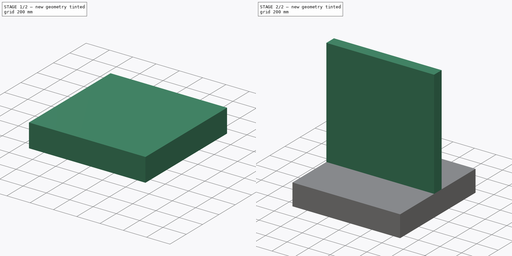
[diagram: build sequence overview — one tinted view per stage of 2, left to right]
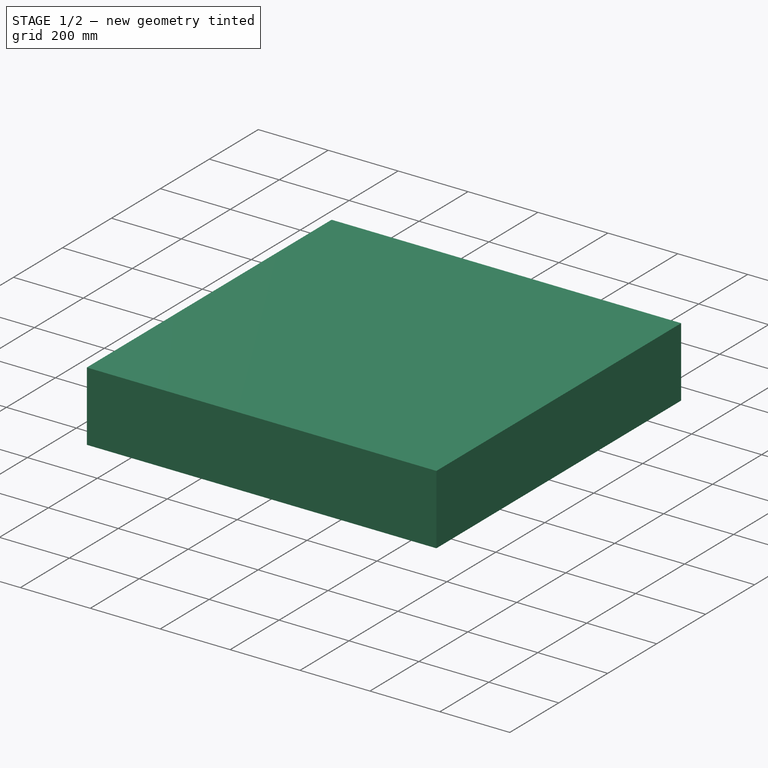
[diagram: stage 1 of 2 — iso view after this stage's code; geometry added in this stage tinted green]
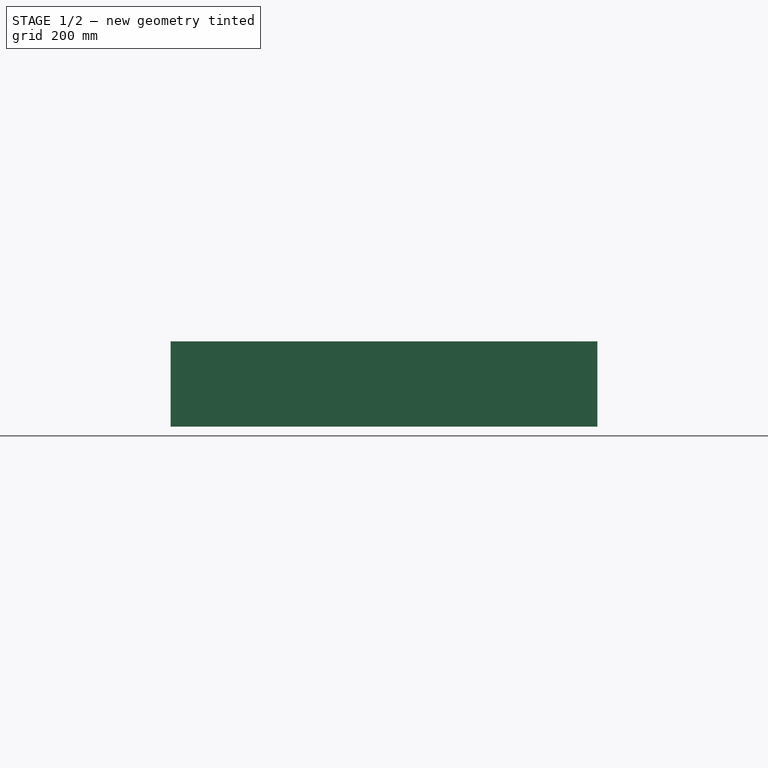
[diagram: stage 1 of 2 — front view after this stage's code; geometry added in this stage tinted green]
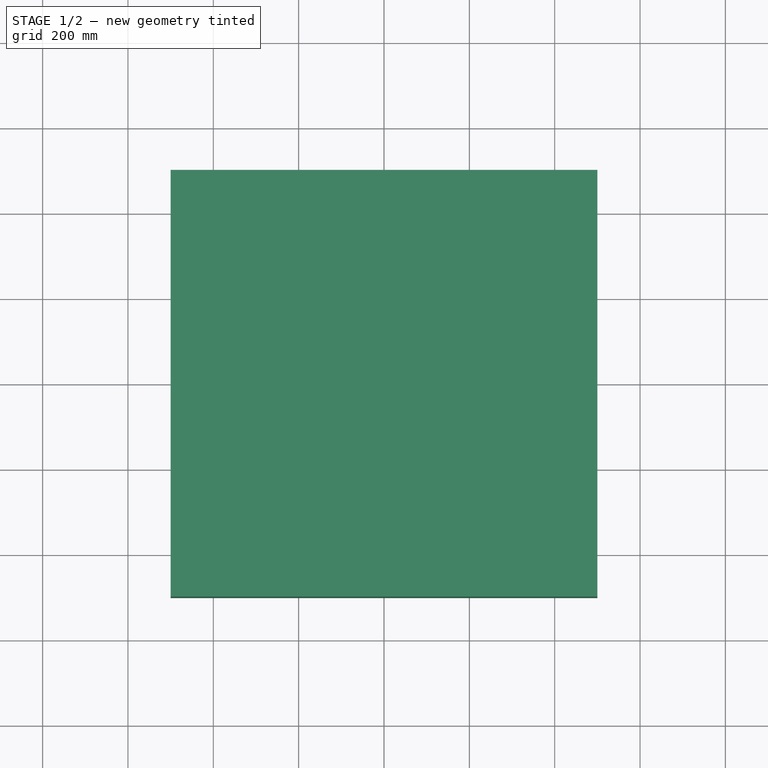
[diagram: stage 1 of 2 — top view after this stage's code; geometry added in this stage tinted green]
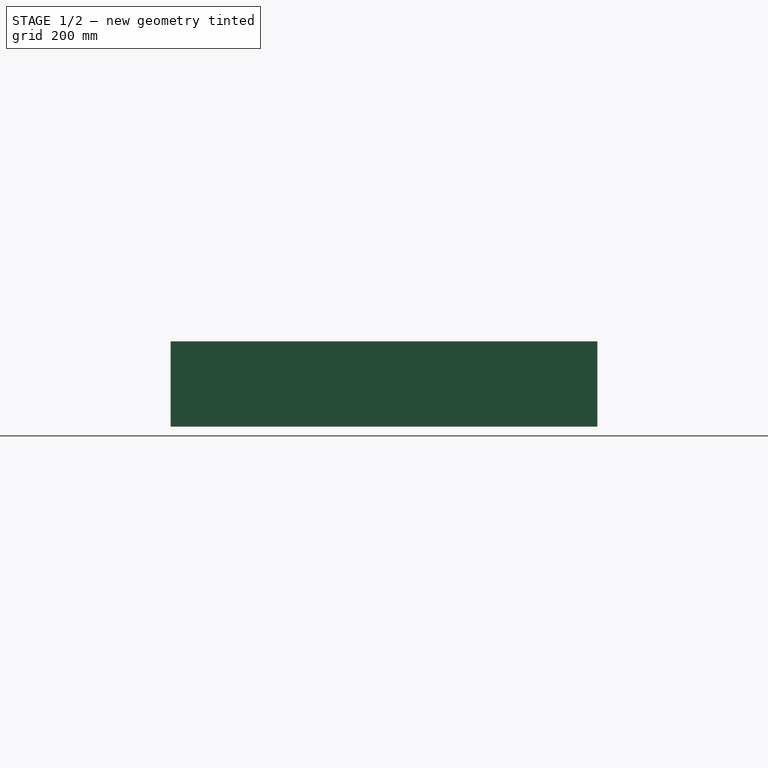
[diagram: stage 1 of 2 — right view after this stage's code; geometry added in this stage tinted green]
FCSTD DOCUMENT  (FreeCAD 0.16R6706 (Git))
Label: wall_width
License: All rights reserved
LicenseURL: http://en.wikipedia.org/wiki/All_rights_reserved
objects: Sketcher::SketchObject×2, PartDesign::Pad×2, Part::Feature×1, Drawing::FeatureViewPart×1, Drawing::FeatureViewPython×1, Drawing::FeaturePage×1
note: 7 computed .brp shape members not serialized (recipe doc carries the construction recipe); baked Part::Feature solids carry a one-line shape summary decoded from their .brp

FEATURE [Sketcher::SketchObject] Sketch
  sketch-geometry (4):
    g0: LineSegment StartX=-500 StartY=500 StartZ=0 EndX=500 EndY=500 EndZ=0
    g1: LineSegment StartX=500 StartY=500 StartZ=0 EndX=500 EndY=-500 EndZ=0
    g2: LineSegment StartX=500 StartY=-500 StartZ=0 EndX=-500 EndY=-500 EndZ=0
    g3: LineSegment StartX=-500 StartY=-500 StartZ=0 EndX=-500 EndY=500 EndZ=0
  constraints (11):
    c: Coincident(g0,g1)
    c: Coincident(g1,g2)
    c: Coincident(g2,g3)
    c: Coincident(g3,g0)
    c: Horizontal(g0)
    c: Horizontal(g2)
    c: Vertical(g1)
    c: Vertical(g3)
    c: Symmetric(g1,g0,g-1)
    c: Equal(g0,g1)
    c: DistanceX(g0,g0) = 1000
FEATURE [PartDesign::Pad] Pad
  Length = 200
  Length2 = 100
  Sketch = -> Sketch
  Type = 0
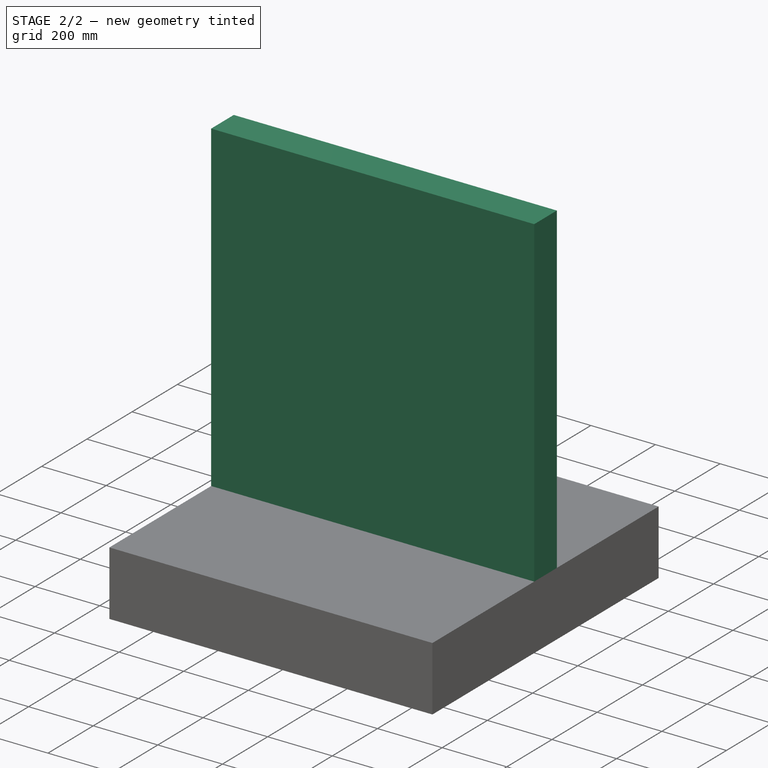
[diagram: stage 2 of 2 — iso view after this stage's code; geometry added in this stage tinted green]
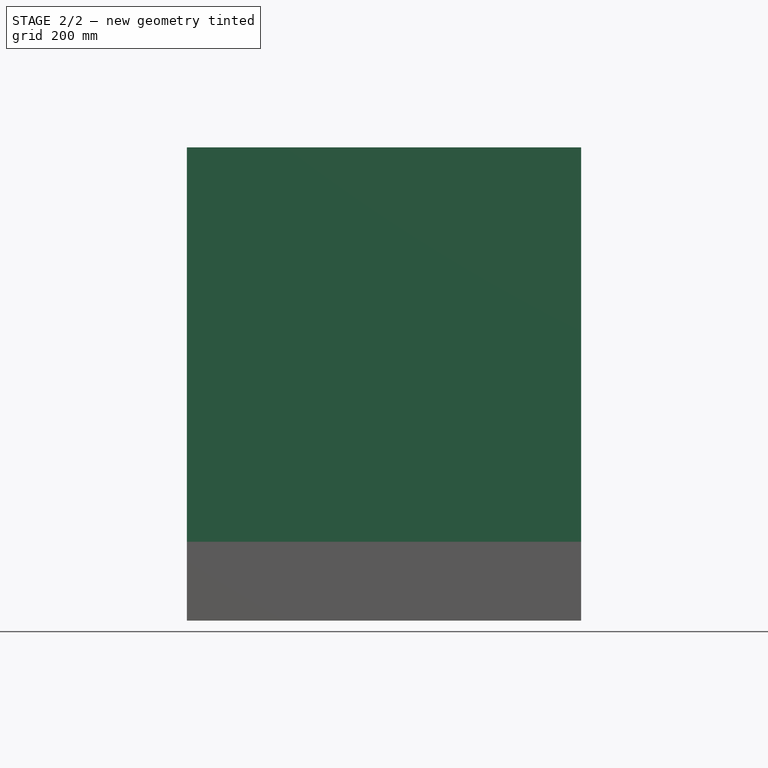
[diagram: stage 2 of 2 — front view after this stage's code; geometry added in this stage tinted green]
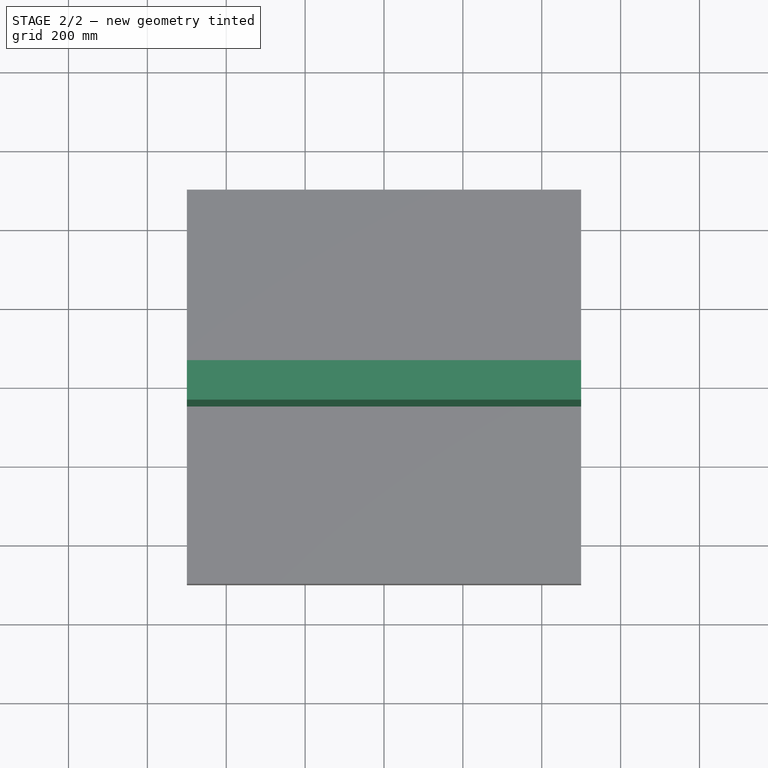
[diagram: stage 2 of 2 — top view after this stage's code; geometry added in this stage tinted green]
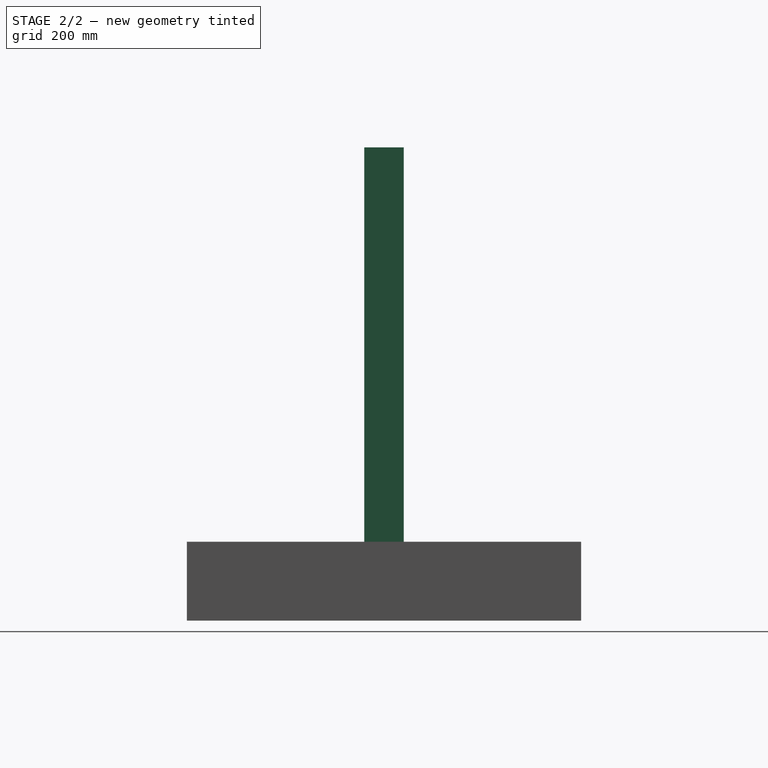
[diagram: stage 2 of 2 — right view after this stage's code; geometry added in this stage tinted green]
FEATURE [Sketcher::SketchObject] Sketch001
  Placement = pos=(0,0,200) rot=(0,0,1;0rad)
  Support = -> Pad [Face6]
  sketch-geometry (4):
    g0: LineSegment StartX=-500 StartY=50 StartZ=0 EndX=500 EndY=50 EndZ=0
    g1: LineSegment StartX=500 StartY=50 StartZ=0 EndX=500 EndY=-50 EndZ=0
    g2: LineSegment StartX=500 StartY=-50 StartZ=0 EndX=-500 EndY=-50 EndZ=0
    g3: LineSegment StartX=-500 StartY=-50 StartZ=0 EndX=-500 EndY=50 EndZ=0
  constraints (11):
    c: Coincident(g0,g1)
    c: Coincident(g1,g2)
    c: Coincident(g2,g3)
    c: Coincident(g3,g0)
    c: Horizontal(g0)
    c: Horizontal(g2)
    c: Vertical(g1)
    c: Vertical(g3)
    c: Symmetric(g0,g1,g-1)
    c: DistanceX(g0,g0) = 1000
    c: DistanceY(g1,g1) = 100
FEATURE [PartDesign::Pad] Pad001
  Length = 1000
  Length2 = 100
  Sketch = -> Sketch001
  Type = 0
FEATURE [Part::Feature] Pad001001  label="Pad002"
  shape: bbox 1000 x 1000 x 1200 mm, 10 faces (baked)
FEATURE [Drawing::FeatureViewPart] View
  Direction = (1,-1,1)
  HiddenWidth = 0.15
  LineWidth = 0.35
  Rotation = 60
  Scale = 0.1
  ShowHiddenLines = false
  ShowSmoothLines = false
  Source = -> Pad001001
  Tolerance = 0.05
  ViewResult = <g id="View"\n   transform="rotate(60,105,188.304) translate(105,188.304) scale(0.1,0.1)"\n  >\n<g   stroke="rgb(0, 0, 0)"\n   stroke-width="3.5"\n   stroke-linecap="butt"\n   stroke-linejoin="miter"\n   fill="none"\n   transform="scale(1,-1)"\n  >\n<path id= "1" d=" M 353.553 612.372 L 212.132 694.022 " />\n<path id= "2" d=" M -106.066 510.31 L 212.132 694.022 " />\n<path id= "3" d=" M 353.553 612.372 L 353.553 -204.124 " />\n<path id= "4" d=" M 353.553 -204.124 L -353.553 -612.372 " />\n<path id= "5" d=" M 212.132 694.022 L 212.132 326.599 " />\n<path id= "6" d=" M 353.553 -204.124 L 212.132 -122.474 " />\n<path id= "7" d=" M -353.553 -612.372 L -494.975 -530.723 " />\n<path id= "8" d=" M 212.132 -122.474 L -494.975 -530.723 " />\n<path id= "9" d=" M 212.132 244.949 L -494.975 -163.299 " />\n<path id= "10" d=" M 212.132 244.949 L 212.132 -122.474 " />\n<path id= "11" d=" M -494.975 -530.723 L -494.975 -163.299 " />\n<path id= "12" d=" M -1202.08 326.599 L -494.975 734.847 " />\n<path id= "13" d=" M 212.132 326.599 L -494.975 734.847 " />\n<path id= "14" d=" M 212.132 244.949 L -494.975 653.197 " />\n<path id= "15" d=" M -494.975 653.197 L -1202.08 244.949 " />\n<path id= "16" d=" M -494.975 -163.299 L -1202.08 244.949 " />\n<path id= "17" d=" M -494.975 734.847 L -494.975 653.197 " />\n<path id= "18" d=" M -1202.08 244.949 L -1202.08 326.599 " />\n</g>\n</g>
  Visible = true
  X = 105
  Y = 188.304
FEATURE [Drawing::FeatureViewPython] dim001  # drawing view (typed FeaturePython)
  Rotation = 0
  ViewResult = <g> \n  <line x1="136.819770" y1="110.778058" x2="136.819770" y2="69.356402" style="stroke:rgb(153,153,153);stroke-width:0.30" />\n<line x1="143.890867" y1="106.695558" x2="143.890867" y2="69.356402" style="stroke:rgb(153,153,153);stroke-width:0.30" />\n<line x1="136.819770" y1="70.356402" x2="143.890867" y2="70.356402" style="stroke:rgb(153,153,153);stroke-width:0.30" /> \n  <polygon points="143.890867,70.356402 146.890867,71.356402 147.890867,70.356402 146.890867,69.356402" style="fill:rgb(153,153,153);stroke:rgb(153,153,153);stroke-width:0" /><polygon points="136.819770,70.356402 133.819770,69.356402 132.819770,70.356402 133.819770,71.356402" style="fill:rgb(153,153,153);stroke:rgb(153,153,153);stroke-width:0" /> \n  <text x="140.355318" y="68.356402" font-family="Verdana" font-size="3.6" fill="rgb(153,153,153)" text-anchor="middle" transform="rotate(0.000000 140.355318,68.356402)" >70.711</text> </g>
  Visible = true
  X = 0
  Y = 0
  arrowL1 = 3
  arrowL2 = 1
  arrowW = 2
  arrow_scheme = 0
  autoPlaceOffset = 2
  autoPlaceText = true
  click1_x = 140.439
  click1_y = 70.3564
  click2_x = 140.439
  click2_y = 70.3564
  comma_decimal_place = false
  dimension_line_overshoot = 1
  gap_datum_points = 2
  halfDimension_linear = false
  lineColor = rgb(153,153,153)
  strokeWidth = 0.3
  textFormat_linear = %(value)3.3f
  textRenderer_color = rgb(153,153,153)
  textRenderer_family = Verdana
  textRenderer_size = 3.6
  unit_custom_scale = 1
  unit_scheme = 0
FEATURE [Drawing::FeaturePage] Page
  Group = -> [View,dim001]
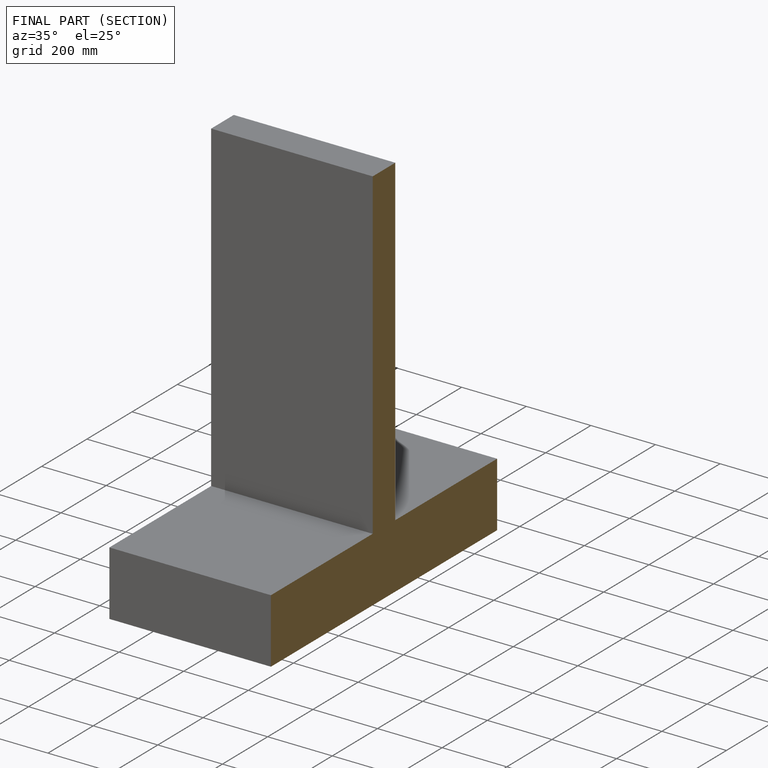
[diagram: finished part — half-section view (interior)]
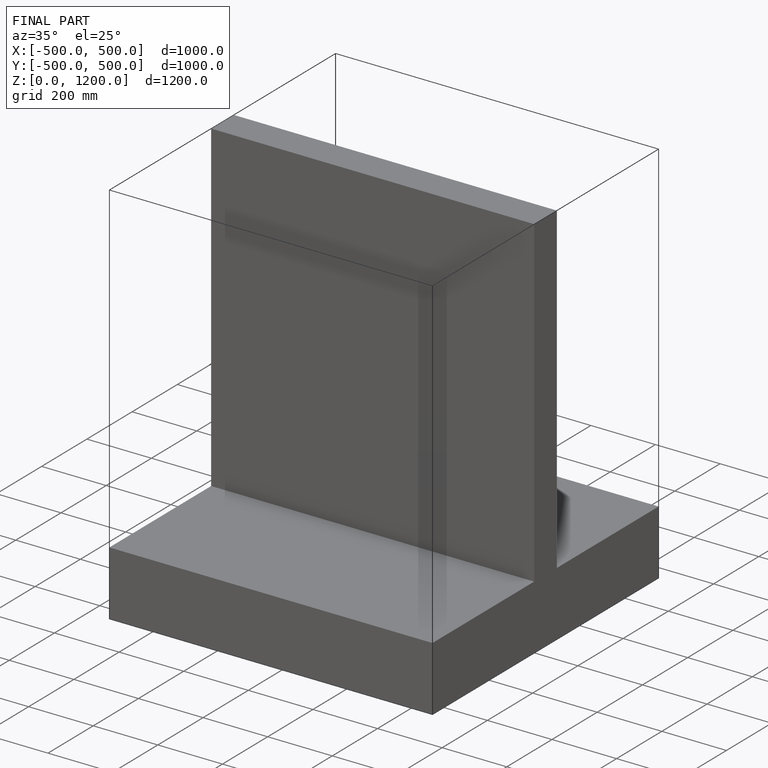
[diagram: finished part — iso view with bounding-box wireframe]
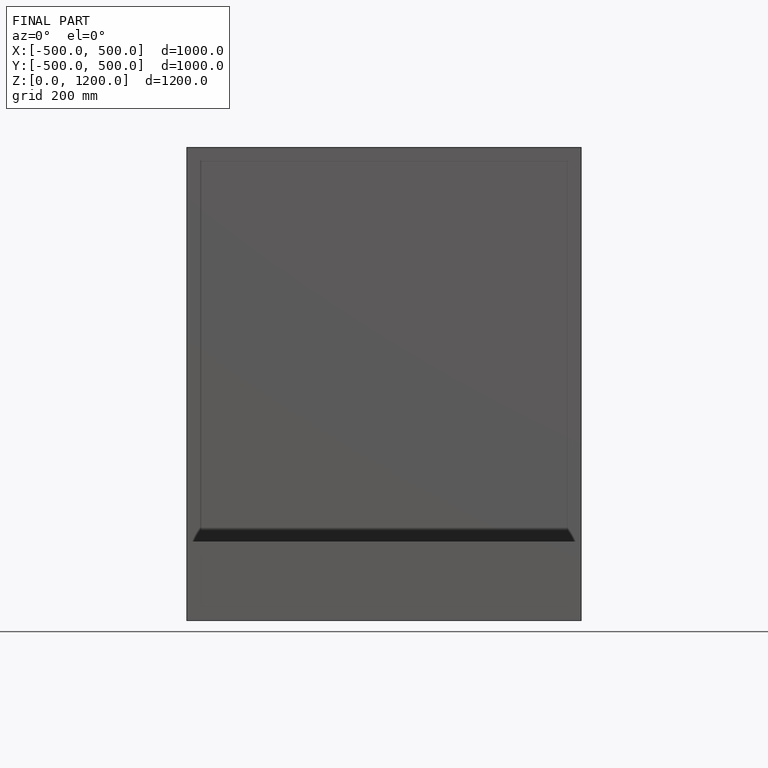
[diagram: finished part — front view with bounding-box wireframe]
